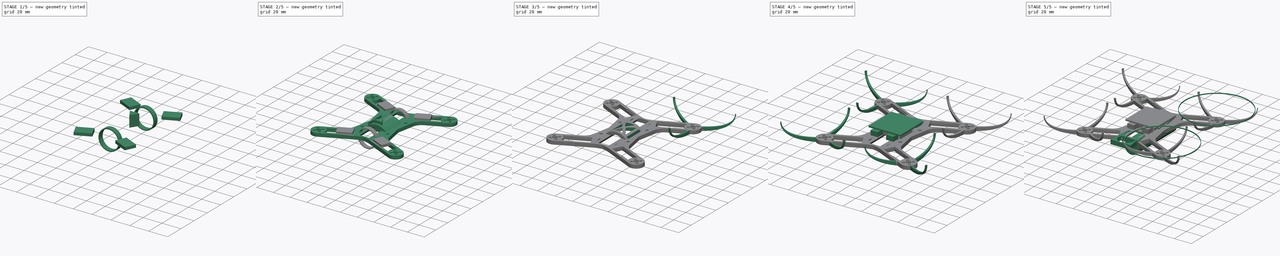
[diagram: build sequence overview — one tinted view per stage of 5, left to right]
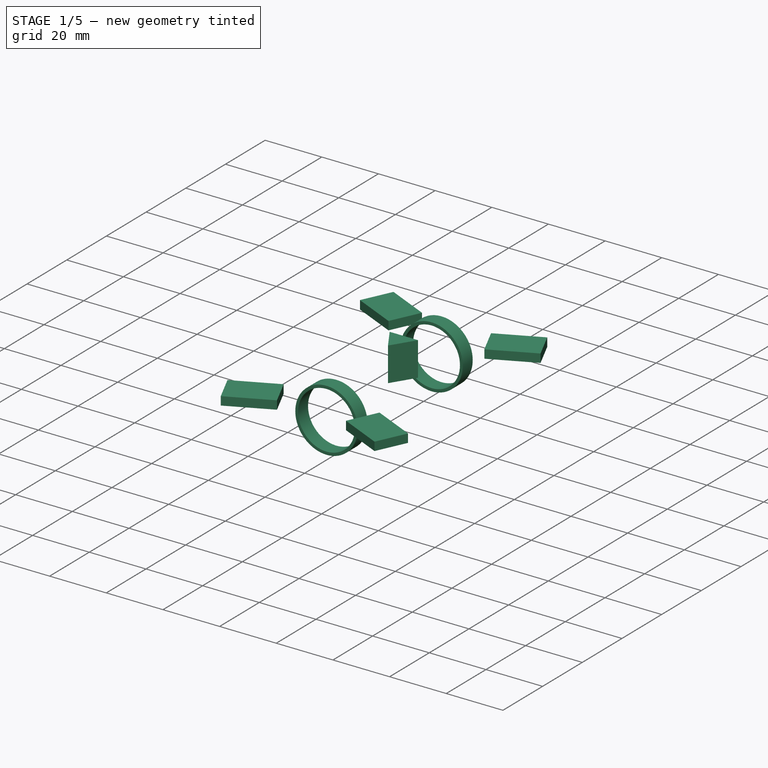
[diagram: stage 1 of 5 — iso view after this stage's code; geometry added in this stage tinted green]
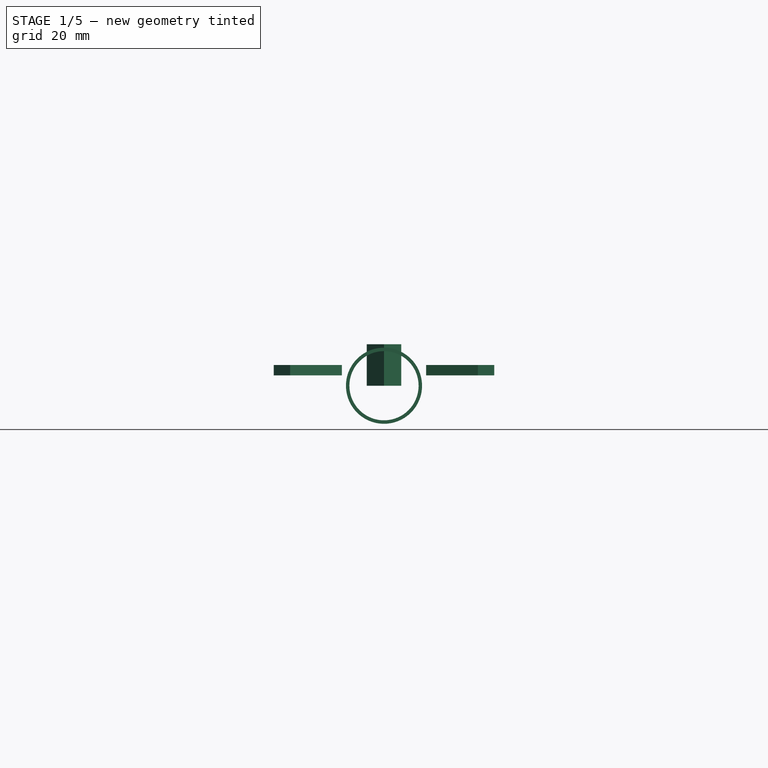
[diagram: stage 1 of 5 — front view after this stage's code; geometry added in this stage tinted green]
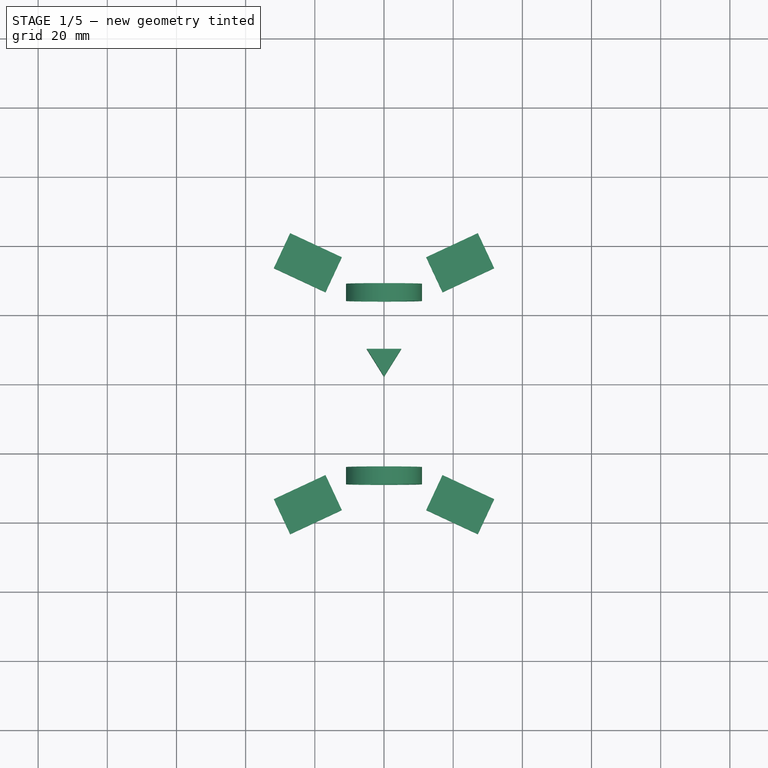
[diagram: stage 1 of 5 — top view after this stage's code; geometry added in this stage tinted green]
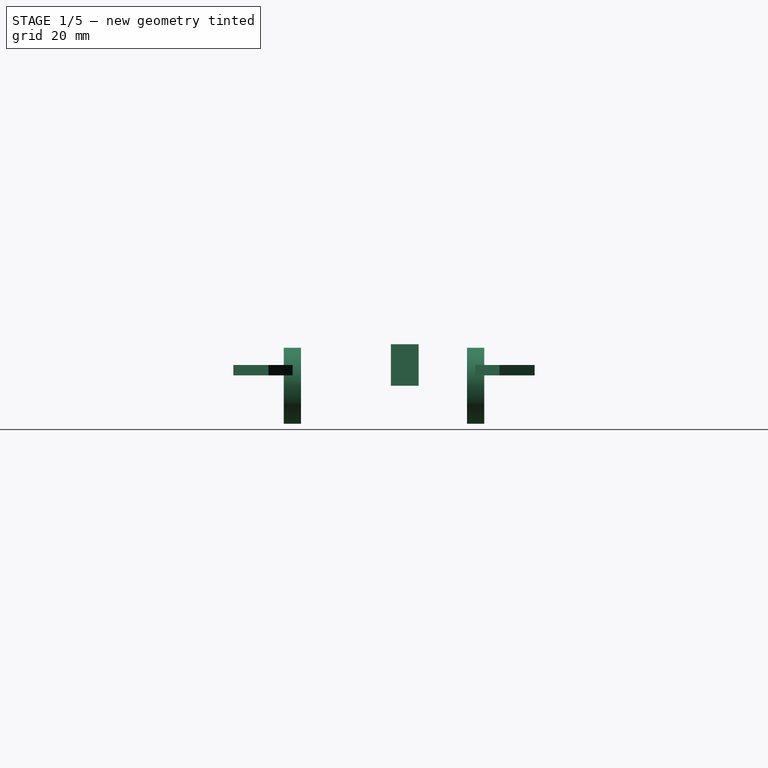
[diagram: stage 1 of 5 — right view after this stage's code; geometry added in this stage tinted green]
FCSTD DOCUMENT  (FreeCAD 0.18R16093 +53 (Git))
Label: bolt_frame_slim_center_v3
License: All rights reserved
LicenseURL: http://en.wikipedia.org/wiki/All_rights_reserved
objects: Part::MultiFuse×13, Part::Mirroring×12, Part::Extrusion×11, Part::Cylinder×11, Part::Cut×9, Sketcher::SketchObject×7, Part::Box×6, Part::FeaturePython×1
note: 70 computed .brp shape members not serialized (recipe doc carries the construction recipe); baked Part::Feature solids carry a one-line shape summary decoded from their .brp

FEATURE [Part::Box] Box006  label="ESC"
  AttacherType = Attacher::AttachEngine3D
  Height = 3
  Length = 11.2
  Placement = pos=(-16.9149,26.4139,3) rot=(0,0,1;1.13446rad)
  Width = 16.5
FEATURE [Sketcher::SketchObject] Sketch006
  sketch-geometry (3):
    g0: LineSegment StartX=-5 StartY=10 StartZ=0 EndX=0 EndY=2 EndZ=0
    g1: LineSegment StartX=5 StartY=10 StartZ=0 EndX=0 EndY=2 EndZ=0
    g2: LineSegment StartX=-5 StartY=10 StartZ=0 EndX=5 EndY=10 EndZ=0
  constraints (5):
    c: PointOnObject(g0,g-2)
    c: Coincident(g2,g0)
    c: Horizontal(g2)
    c: Coincident(g1,g2)
    c: Coincident(g0,g1)
FEATURE [Part::Extrusion] Extrude012
  Base = -> Sketch006
  Dir = (0,0,1)
  DirMode = 2
  FaceMakerClass = Part::FaceMakerBullseye
  LengthFwd = 12
  LengthRev = 0
  Solid = true
  Symmetric = false
FEATURE [Part::Cylinder] Cylinder007
  Angle = 360
  AttacherType = Attacher::AttachEngine3D
  Height = 5
  Placement = pos=(0,29,0) rot=(1,0,0;1.5708rad)
  Radius = 11
FEATURE [Part::Cylinder] Cylinder008
  Angle = 360
  AttacherType = Attacher::AttachEngine3D
  Height = 5
  Placement = pos=(0,29,0) rot=(1,0,0;1.5708rad)
  Radius = 10
FEATURE [Part::Cut] Cut008
  Base = -> Cylinder007
  Tool = -> Cylinder008
FEATURE [Part::Cylinder] Cylinder009
  Angle = 360
  AttacherType = Attacher::AttachEngine3D
  Height = 5
  Placement = pos=(0,29,0) rot=(1,0,0;1.5708rad)
  Radius = 10
FEATURE [Part::Cylinder] Cylinder010
  Angle = 360
  AttacherType = Attacher::AttachEngine3D
  Height = 5
  Placement = pos=(0,29,0) rot=(1,0,0;1.5708rad)
  Radius = 11
FEATURE [Part::Cut] Cut009
  Base = -> Cylinder010
  Placement = pos=(0,-53,0) rot=(0,0,1;0rad)
  Tool = -> Cylinder009
FEATURE [Part::MultiFuse] Fusion011  label="Ziptie_slit"
  Shapes = -> [Cut008,Cut009]
FEATURE [Part::Mirroring] Part__Mirroring010  label="ESC (Mirror #11)"
  Base = (0,0,0)
  Normal = (1,0,0)
  Source = -> Box006
FEATURE [Part::MultiFuse] Fusion012
  Shapes = -> [Box006,Part__Mirroring010]
FEATURE [Part::Mirroring] Part__Mirroring011  label="Fusion012 (Mirror #12)"
  Base = (0,0,0)
  Normal = (0,1,0)
  Source = -> Fusion012
FEATURE [Part::MultiFuse] Fusion013  label="ESC001"
  Shapes = -> [Fusion012,Part__Mirroring011]
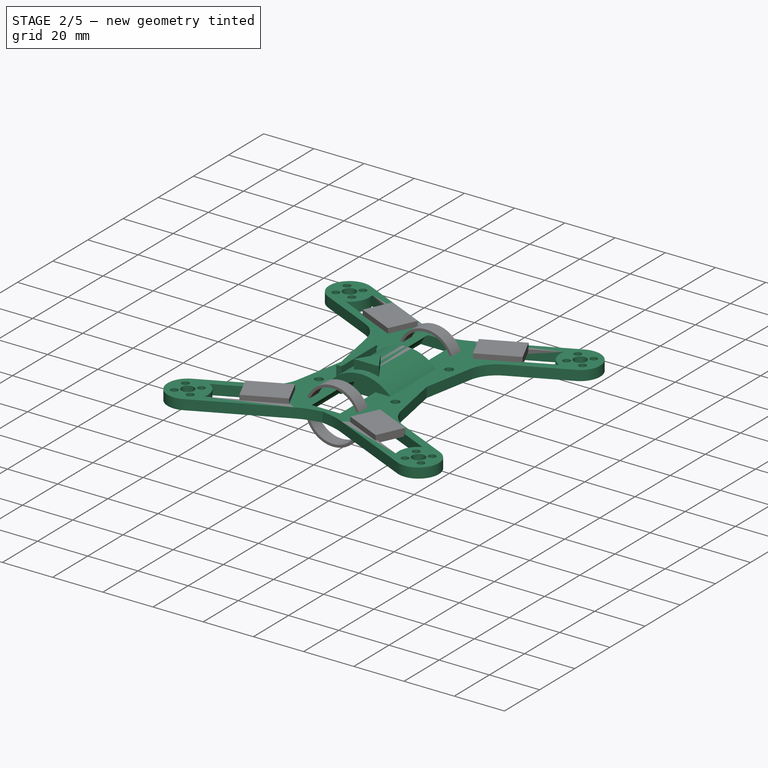
[diagram: stage 2 of 5 — iso view after this stage's code; geometry added in this stage tinted green]
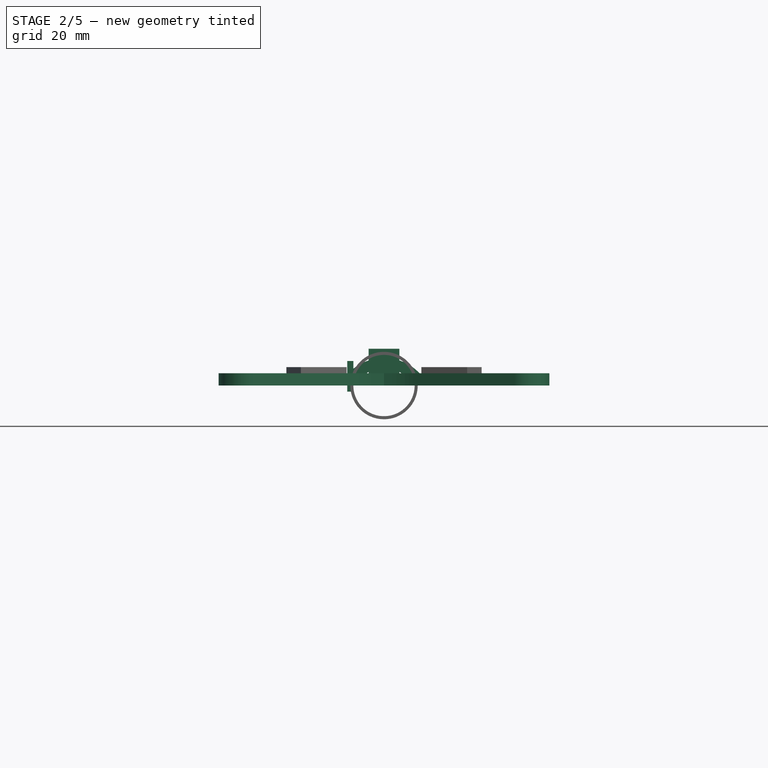
[diagram: stage 2 of 5 — front view after this stage's code; geometry added in this stage tinted green]
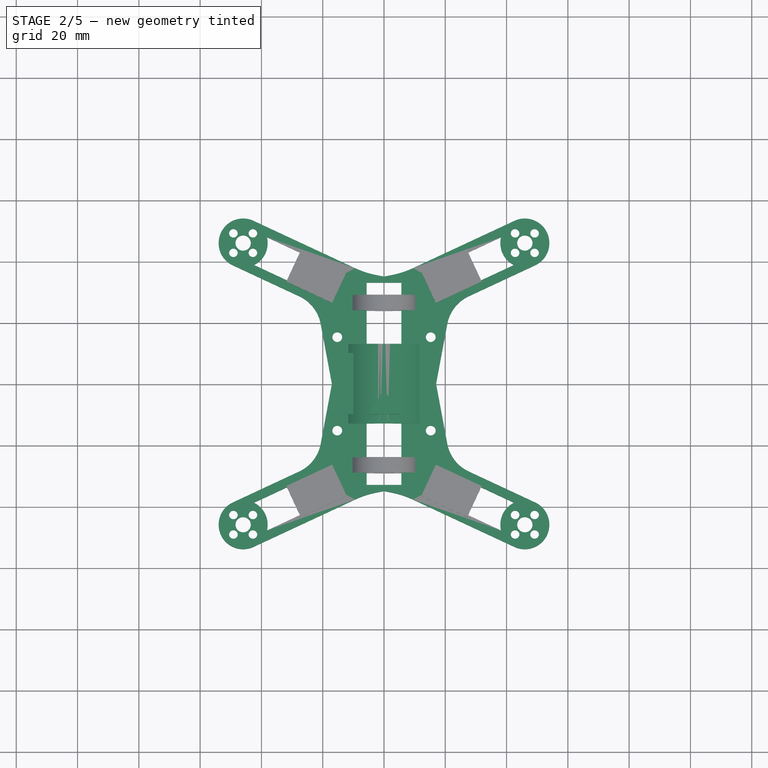
[diagram: stage 2 of 5 — top view after this stage's code; geometry added in this stage tinted green]
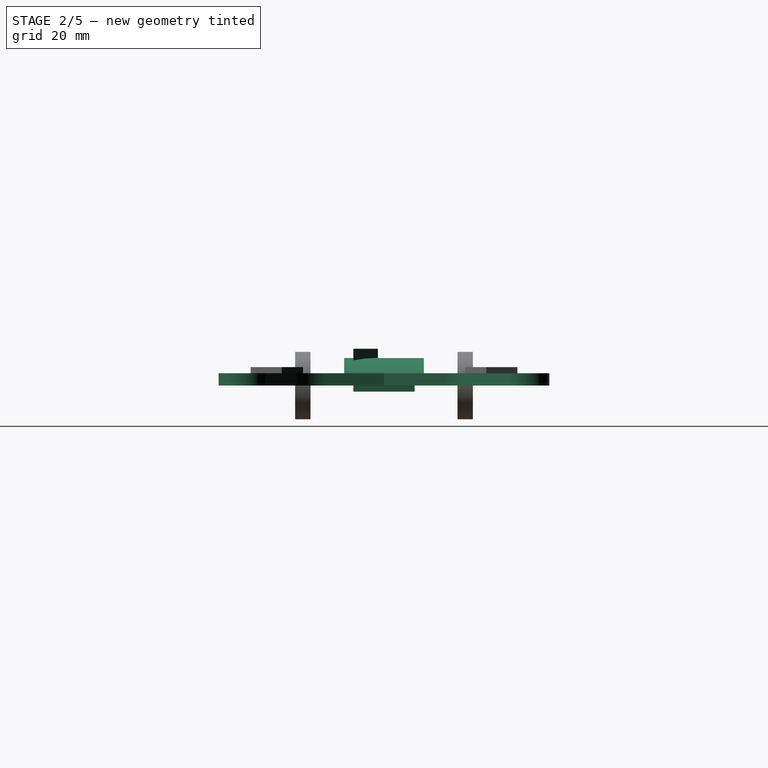
[diagram: stage 2 of 5 — right view after this stage's code; geometry added in this stage tinted green]
FEATURE [Sketcher::SketchObject] Sketch
  sketch-geometry (24):
    g0: Circle CenterX=-45.9619 CenterY=45.9619 CenterZ=0 NormalX=0 NormalY=0 NormalZ=1 AngleXU=0 Radius=2.5
    g1: LineSegment StartX=-27.6585 StartY=28.5999 StartZ=0 EndX=-49.3429 EndY=38.7115 EndZ=0
    g2: ArcOfCircle CenterX=-45.9619 CenterY=45.9619 CenterZ=0 NormalX=0 NormalY=0 NormalZ=1 AngleXU=0 Radius=8 StartAngle=1.13446 EndAngle=4.27606
    g3: Circle CenterX=-15.25 CenterY=15.25 CenterZ=0 NormalX=0 NormalY=0 NormalZ=1 AngleXU=0 Radius=1.6
    g4: LineSegment StartX=-9.44058 StartY=37.7588 StartZ=0 EndX=-42.5809 EndY=53.2124 EndZ=0
    g5: LineSegment StartX=-20.662 StartY=19.5791 StartZ=0 EndX=-17 EndY=0 EndZ=0
    g6: LineSegment StartX=0 StartY=0 StartZ=0 EndX=-17 EndY=0 EndZ=0
    g7: Circle CenterX=-49.1439 CenterY=42.78 CenterZ=0 NormalX=0 NormalY=0 NormalZ=1 AngleXU=0 Radius=1.4
    g8: Circle CenterX=-42.78 CenterY=49.1439 CenterZ=0 NormalX=0 NormalY=0 NormalZ=1 AngleXU=0 Radius=1.4
    g9: Circle CenterX=-42.78 CenterY=42.78 CenterZ=0 NormalX=0 NormalY=0 NormalZ=1 AngleXU=0 Radius=1.4
    g10: Circle CenterX=-49.1439 CenterY=49.1439 CenterZ=0 NormalX=0 NormalY=0 NormalZ=1 AngleXU=0 Radius=1.4
    g11: ArcOfCircle CenterX=-32.9354 CenterY=17.2835 CenterZ=0 NormalX=0 NormalY=0 NormalZ=1 AngleXU=0 Radius=12.4862 StartAngle=0.184899 EndAngle=1.13446
    g12: LineSegment [constr] StartX=0 StartY=0 StartZ=0 EndX=-45.9619 EndY=45.9619 EndZ=0
    g13: Circle [constr] CenterX=-45.9619 CenterY=45.9619 CenterZ=0 NormalX=0 NormalY=0 NormalZ=1 AngleXU=0 Radius=36
    g14: LineSegment StartX=0 StartY=35 StartZ=0 EndX=0 EndY=0 EndZ=0
    g15: LineSegment StartX=-2.66132 StartY=35.5338 StartZ=0 EndX=0 EndY=35 EndZ=0
    g16: ArcOfCircle CenterX=-38.3548 CenterY=62.2755 CenterZ=0 NormalX=0 NormalY=0 NormalZ=1 AngleXU=0 Radius=10 StartAngle=4.27605 EndAngle=4.27606
    g17: ArcOfCircle CenterX=-53.5691 CenterY=29.6484 CenterZ=0 NormalX=0 NormalY=0 NormalZ=1 AngleXU=0 Radius=10 StartAngle=1.13446 EndAngle=1.13446
    g18: ArcOfCircle CenterX=3.23797 CenterY=64.948 CenterZ=0 NormalX=0 NormalY=0 NormalZ=1 AngleXU=0 Radius=30 StartAngle=4.27606 EndAngle=4.51446
    g19: Circle [constr] CenterX=-45.9619 CenterY=45.9619 CenterZ=0 NormalX=0 NormalY=0 NormalZ=1 AngleXU=0 Radius=8
    g20: LineSegment StartX=-38.189 StartY=47.8542 StartZ=0 EndX=-12.7234 EndY=35.9795 EndZ=0
    g21: LineSegment StartX=-12.7234 StartY=35.9795 StartZ=0 EndX=-16.9496 EndY=26.9164 EndZ=0
    g22: LineSegment StartX=-16.9496 StartY=26.9164 StartZ=0 EndX=-42.4151 EndY=38.7912 EndZ=0
    g23: ArcOfCircle CenterX=-45.9588 CenterY=45.9605 CenterZ=0 NormalX=0 NormalY=0 NormalZ=1 AngleXU=0 Radius=7.99729 StartAngle=5.17145 EndAngle=6.52226
  constraints (60):
    c: Distance(g-1,g0) = 65
    c: Coincident(g0,g2)
    c: Radius(g3) = 1.6
    c: DistanceX(g3,g-1) = 15.25
    c: DistanceY(g-1,g3) = 15.25
    c: Coincident(g5,g6)
    c: Radius(g7) = 1.4
    c: Distance(g0,g7) = 4.5
    c: Radius(g8) = 1.4
    c: Radius(g9) = 1.4
    c: Distance(g9,g0) = 4.5
    c: Radius(g10) = 1.4
    c: Distance(g10,g0) = 4.5
    c: Distance(g8,g0) = 4.5
    c: PointOnObject(g14,g-2)
    c: PointOnObject(g5,g-1)
    c: PointOnObject(g6,g-1)
    c: DistanceX(g6,g-1) = 0
    c: DistanceY(g-1,g14) = 0
    c: Distance(g8,g9) = 6.36396
    c: Distance(g8,g10) = 6.36396
    c: Distance(g10,g7) = 6.36396
    c: Tangent(g1,g11) = -1.5708
    c: Tangent(g5,g11) = 1.5708
    c: Radius(g2) = 8
    c: Coincident(g12,g-1)
    c: Angle(g12) = 2.35619
    c: Coincident(g0,g12)
    c: PointOnObject(g9,g12)
    c: Radius(g13) = 36
    c: Coincident(g13,g0)
    c: PointOnObject(g14,g-2)
    c: DistanceY(g14) = 35
    c: Coincident(g14,g15)
    c: Tangent(g2,g16) = 1.5708
    c: Tangent(g4,g16) = 1.5708
    c: Tangent(g2,g17) = 1.5708
    c: Tangent(g1,g17) = -1.5708
    c: Tangent(g15,g18) = -1.5708
    c: Tangent(g4,g18) = 1.5708
    c: Radius(g18) = 30
    c: Radius(g19) = 8
    c: Coincident(g19,g0)
    c: Angle(g4) = 2.70526
    c: Angle(g1) = 2.70526
    c: DistanceX(g5) = -17
    c: Coincident(g20,g21)
    c: Coincident(g21,g22)
    c: Parallel(g4,g20)
    c: PointOnObject(g20,g19)
    c: PointOnObject(g22,g19)
    c: Perpendicular(g21,g20)
    c: Distance(g4,g20) = 3
    c: Parallel(g1,g22)
    c: Distance(g1,g22) = 3
    c: Coincident(g23,g20)
    c: Coincident(g22,g23)
    c: Radius(g17) = 10
    c: Distance(g21) = 10
    c: Radius(g16) = 10
FEATURE [Part::Extrusion] Extrude
  Base = -> Sketch
  Dir = (0,0,1)
  DirMode = 2
  FaceMakerClass = Part::FaceMakerBullseye
  LengthFwd = 4
  LengthRev = 0
  Solid = true
  Symmetric = false
FEATURE [Part::Mirroring] Part__Mirroring  label="Extrude (Mirror #1)"
  Base = (0,0,0)
  Normal = (0,1,0)
  Source = -> Extrude
FEATURE [Part::Mirroring] Part__Mirroring001  label="Extrude (Mirror #2)"
  Base = (0,0,0)
  Normal = (1,0,0)
  Source = -> Part__Mirroring
FEATURE [Part::Mirroring] Part__Mirroring002  label="Extrude (Mirror #3)"
  Base = (0,0,0)
  Normal = (1,0,0)
  Source = -> Extrude
FEATURE [Part::Cylinder] Cylinder
  Angle = 360
  AttacherType = Attacher::AttachEngine3D
  Height = 66
  Placement = pos=(0,33,-3) rot=(1,0,0;1.5708rad)
  Radius = 9
FEATURE [Part::MultiFuse] Fusion
  Shapes = -> [Part__Mirroring002,Extrude,Part__Mirroring001,Part__Mirroring]
FEATURE [Part::Cut] Cut005
  Base = -> Fusion
  Tool = -> Cylinder
FEATURE [Part::Extrusion] Extrude007
  Base = -> Sketch002
  Dir = (0,-1,2e-16)
  DirMode = 2
  FaceMakerClass = Part::FaceMakerBullseye
  LengthFwd = 26
  LengthRev = 0
  Placement = pos=(0,20,0) rot=(0,0,1;0rad)
  Reversed = true
  Solid = true
  Symmetric = false
FEATURE [Part::Box] Box008  label="Cube007"
  AttacherType = Attacher::AttachEngine3D
  Height = 10
  Length = 2
  Placement = pos=(10,-10,-2) rot=(0,0,1;0rad)
  Width = 20
FEATURE [Part::Mirroring] Part__Mirroring005  label="Cube007 (Mirror #6)"
  Base = (0,0,0)
  Normal = (1,0,0)
  Source = -> Box008
FEATURE [Part::MultiFuse] Fusion007
  Shapes = -> [Cut005,Extrude007]
FEATURE [Part::Mirroring] Part__Mirroring009  label="Extrude012 (Mirror #10)"
  Base = (0,0,0)
  Normal = (0,1,0)
  Source = -> Extrude012
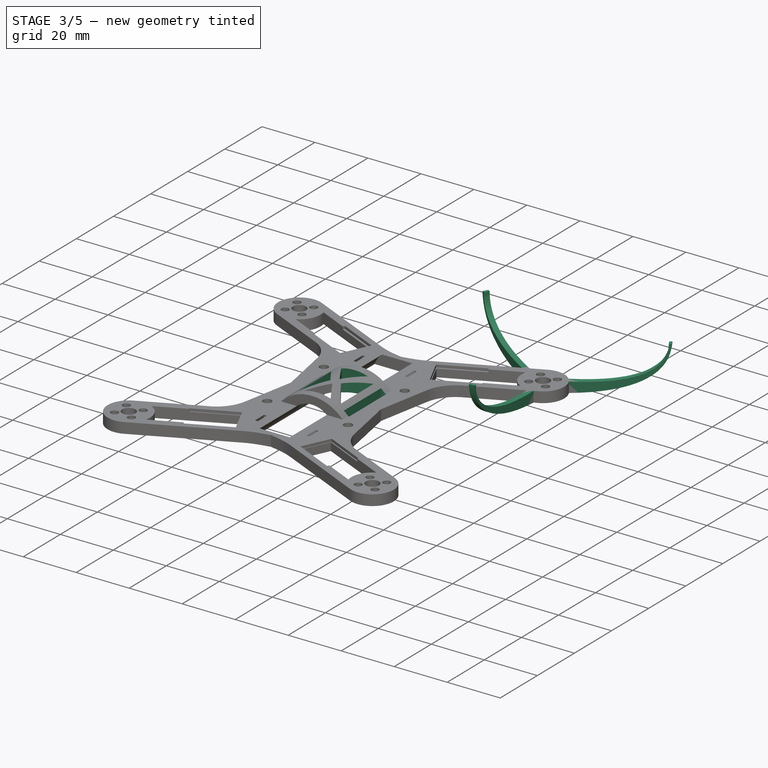
[diagram: stage 3 of 5 — iso view after this stage's code; geometry added in this stage tinted green]
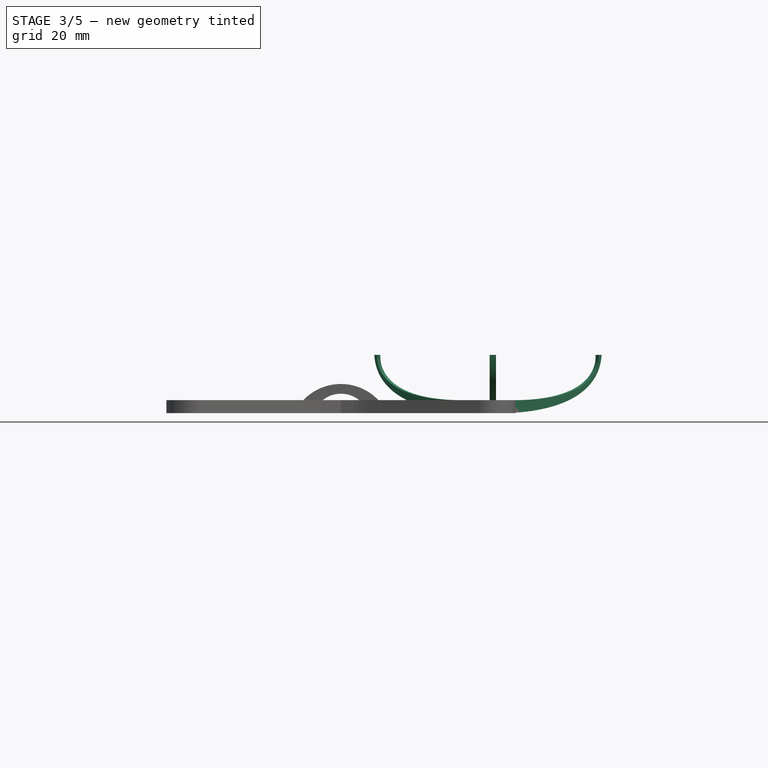
[diagram: stage 3 of 5 — front view after this stage's code; geometry added in this stage tinted green]
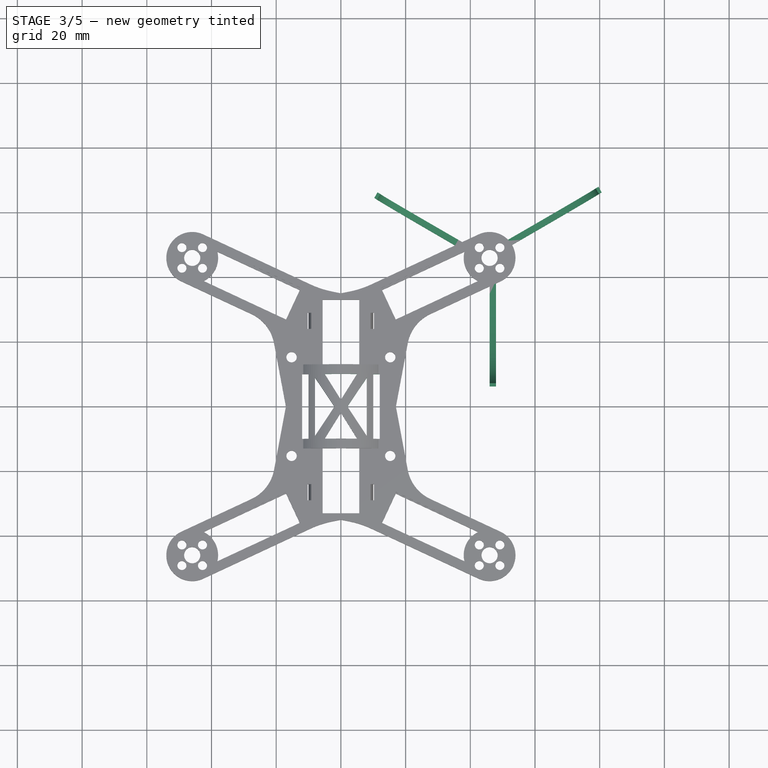
[diagram: stage 3 of 5 — top view after this stage's code; geometry added in this stage tinted green]
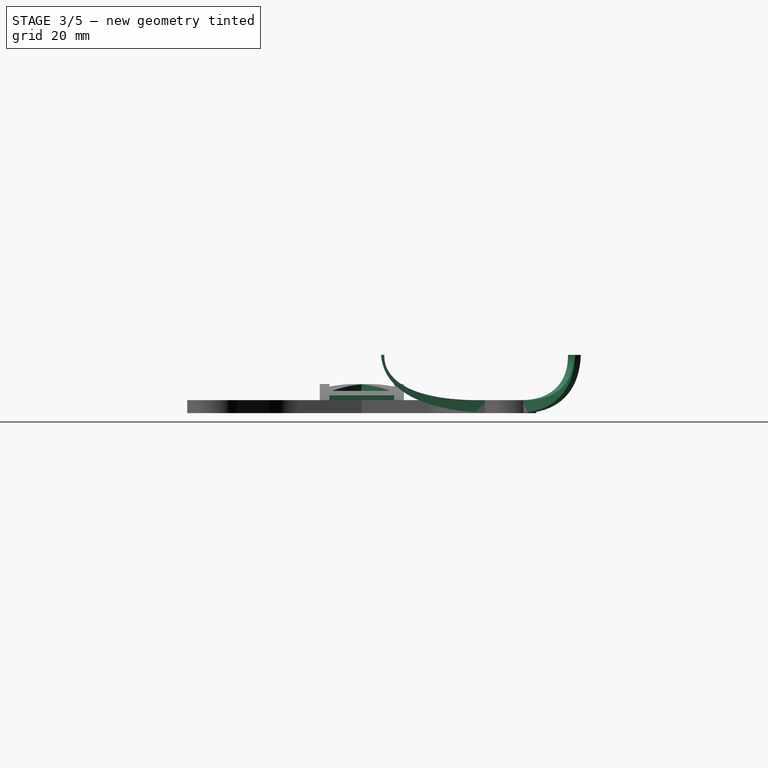
[diagram: stage 3 of 5 — right view after this stage's code; geometry added in this stage tinted green]
FEATURE [Part::Cylinder] Cylinder006
  Angle = 360
  AttacherType = Attacher::AttachEngine3D
  Height = 74
  Placement = pos=(0,33,-3) rot=(1,0,0;1.5708rad)
  Radius = 9
FEATURE [Sketcher::SketchObject] Sketch003
  MapMode = 5
  Placement = pos=(0,-41,-3) rot=(1,0,0;1.5708rad)
  Support = -> [Cylinder006]
  sketch-geometry (5):
    g0: ArcOfCircle CenterX=0 CenterY=0 CenterZ=0 NormalX=0 NormalY=0 NormalZ=1 AngleXU=0 Radius=9 StartAngle=0.729728 EndAngle=2.41186
    g1: LineSegment [constr] StartX=-12.9645 StartY=6 StartZ=0 EndX=13.2154 EndY=6 EndZ=0
    g2: ArcOfCircle CenterX=0 CenterY=-4 CenterZ=0 NormalX=0 NormalY=0 NormalZ=1 AngleXU=0 Radius=14 StartAngle=0.795603 EndAngle=2.34599
    g3: LineSegment StartX=-9.79796 StartY=6 StartZ=0 EndX=-6.7082 EndY=6 EndZ=0
    g4: LineSegment StartX=6.7082 StartY=6 StartZ=0 EndX=9.79796 EndY=6 EndZ=0
  constraints (15):
    c: Coincident(g0,g-1)
    c: Radius(g0) = 9
    c: Horizontal(g1)
    c: PointOnObject(g0,g1)
    c: PointOnObject(g0,g1)
    c: PointOnObject(g2,g-2)
    c: PointOnObject(g2,g1)
    c: PointOnObject(g2,g1)
    c: DistanceY(g2) = -4
    c: Coincident(g3,g2)
    c: Coincident(g3,g0)
    c: Coincident(g4,g0)
    c: Coincident(g4,g2)
    c: DistanceY(g1) = 6
    c: Radius(g2) = 14
FEATURE [Part::Extrusion] Extrude008
  Base = -> Sketch003
  Dir = (0,-1,2e-16)
  DirMode = 2
  FaceMakerClass = Part::FaceMakerBullseye
  LengthFwd = 11
  LengthRev = 0
  Placement = pos=(0,63,0) rot=(0,0,1;0rad)
  Reversed = true
  Solid = true
  Symmetric = false
FEATURE [Part::Extrusion] Extrude009
  Base = -> Sketch003
  Dir = (0,-1,2e-16)
  DirMode = 2
  FaceMakerClass = Part::FaceMakerBullseye
  LengthFwd = 11
  LengthRev = 2
  Placement = pos=(0,8,0) rot=(0,0,1;0rad)
  Reversed = true
  Solid = true
  Symmetric = false
FEATURE [Part::MultiFuse] Fusion006
  Shapes = -> [Part__Mirroring005,Box008]
FEATURE [Part::Cut] Cut006  label="Frame"
  Base = -> Fusion007
  Tool = -> Fusion006
FEATURE [Sketcher::SketchObject] Sketch004
  Placement = pos=(45.96,45.96,0) rot=(0.57735,0.57735,0.57735;2.0944rad)
  sketch-geometry (10):
    g0: Circle [constr] CenterX=-6.99995 CenterY=4.8e-05 CenterZ=0 NormalX=0 NormalY=0 NormalZ=1 AngleXU=0 Radius=5.18111
    g1: Circle [constr] CenterX=-38.7435 CenterY=1.33987 CenterZ=0 NormalX=0 NormalY=0 NormalZ=1 AngleXU=0 Radius=4.83607
    g2: BSplineCurve PolesCount=3 KnotsCount=2 Degree=2 IsPeriodic=0
    g3: GeomPoint [constr] X=-8 Y=0 Z=0
    g4: Circle [constr] CenterX=-8 CenterY=4 CenterZ=0 NormalX=0 NormalY=0 NormalZ=1 AngleXU=0 Radius=4
    g5: Circle [constr] CenterX=-39.3923 CenterY=3.22739 CenterZ=0 NormalX=0 NormalY=0 NormalZ=1 AngleXU=0 Radius=4
    g6: BSplineCurve PolesCount=4 KnotsCount=2 Degree=3 IsPeriodic=0
    g7: GeomPoint [constr] X=-8 Y=4 Z=0
    g8: LineSegment StartX=-40.0067 StartY=18.0009 StartZ=0 EndX=-38.9974 EndY=18.0009 EndZ=0
    g9: LineSegment StartX=-6.99995 StartY=3.99997 StartZ=0 EndX=-6.99995 EndY=4.8e-05 EndZ=0
  constraints (6):
    c: InternalAlignment(g0,g2)
    c: InternalAlignment(g1,g2)
    c: Coincident(g9,g6)
    c: Coincident(g9,g2)
    c: Vertical(g9)
    c: Horizontal(g8)
FEATURE [Part::Extrusion] Extrude010
  Base = -> Sketch004
  Dir = (1,-1e-16,2e-16)
  DirMode = 2
  FaceMakerClass = Part::FaceMakerBullseye
  LengthFwd = 2
  LengthRev = 0
  Solid = true
  Symmetric = false
FEATURE [Part::FeaturePython] Array  # Draft array (typed FeaturePython)
  Angle = 360
  ArrayType = 1
  Axis = (0,0,1)
  Base = -> Extrude010
  Center = (45.96,45.96,0)
  Fuse = false
  IntervalAxis = (0,0,0)
  IntervalX = (1,0,0)
  IntervalY = (0,1,0)
  IntervalZ = (0,0,1)
  NumberPolar = 3
  NumberX = 2
  NumberY = 2
  NumberZ = 1
FEATURE [Sketcher::SketchObject] Sketch005
  MapMode = 45
  Placement = pos=(3.2e-15,-0.127025,2.68397) rot=(-1,0,0;0.00032rad)
  Support = -> [Extrude008,Extrude009,Cut006]
  sketch-geometry (3):
    g0: LineSegment StartX=-2 StartY=0 StartZ=0 EndX=-8 EndY=9 EndZ=0
    g1: LineSegment StartX=-8 StartY=9 StartZ=0 EndX=-8 EndY=-9 EndZ=0
    g2: LineSegment StartX=-8 StartY=-9 StartZ=0 EndX=-2 EndY=0 EndZ=0
  constraints (3):
    c: Vertical(g1)
    c: Coincident(g0,g1)
    c: Coincident(g1,g2)
FEATURE [Part::Extrusion] Extrude011
  Base = -> Sketch005
  Dir = (0,0.000320156,1)
  DirMode = 2
  FaceMakerClass = Part::FaceMakerBullseye
  LengthFwd = 10
  LengthRev = 2
  Solid = true
  Symmetric = false
FEATURE [Part::Mirroring] Part__Mirroring008  label="Extrude011 (Mirror #9)"
  Base = (0,0,0)
  Normal = (1,0,0)
  Source = -> Extrude011
FEATURE [Part::MultiFuse] Fusion010  label="V_cuts"
  Shapes = -> [Part__Mirroring009,Extrude011,Part__Mirroring008,Extrude012]
FEATURE [Part::Cut] Cut007
  Base = -> Cut006
  Tool = -> Fusion010
FEATURE [Part::Cut] Cut010
  Base = -> Cut007
  Tool = -> Fusion011
FEATURE [Part::Cut] Cut011
  Base = -> Cut010
  Tool = -> Fusion013
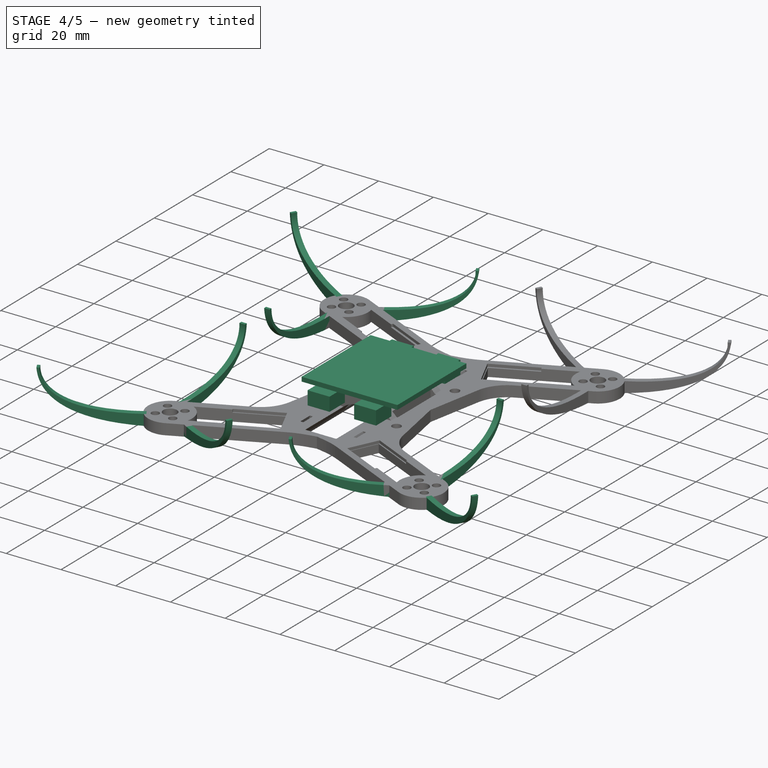
[diagram: stage 4 of 5 — iso view after this stage's code; geometry added in this stage tinted green]
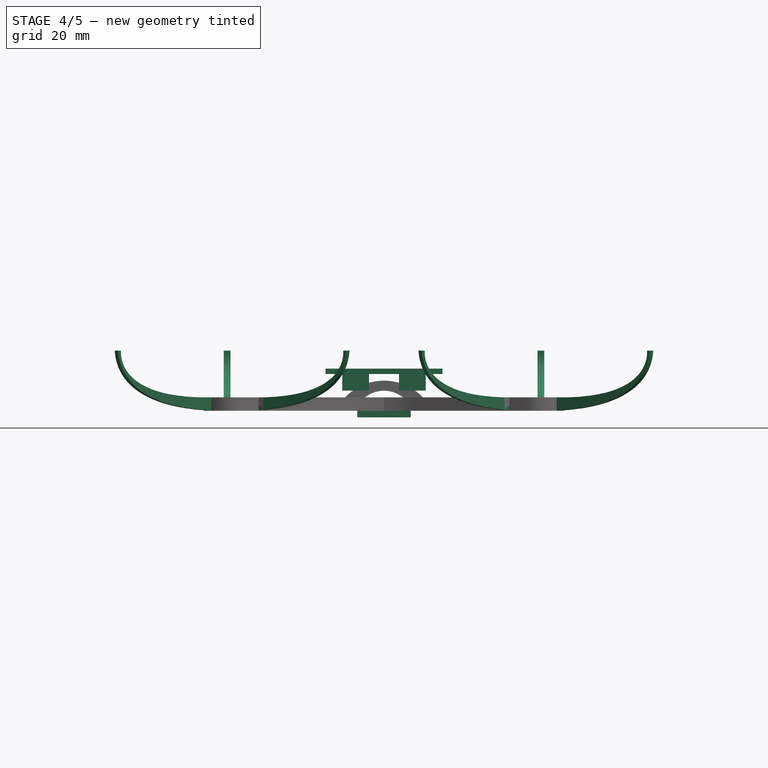
[diagram: stage 4 of 5 — front view after this stage's code; geometry added in this stage tinted green]
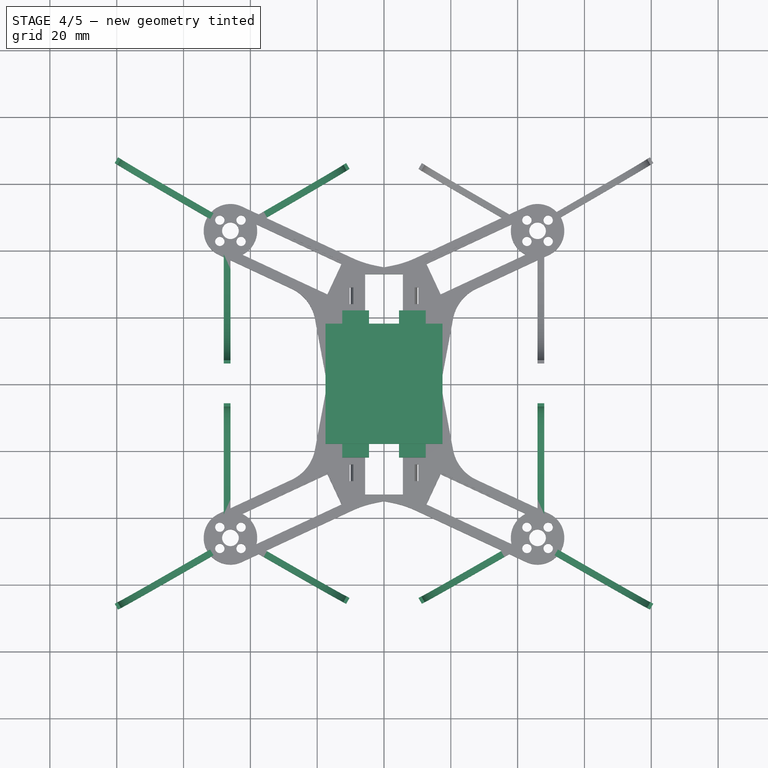
[diagram: stage 4 of 5 — top view after this stage's code; geometry added in this stage tinted green]
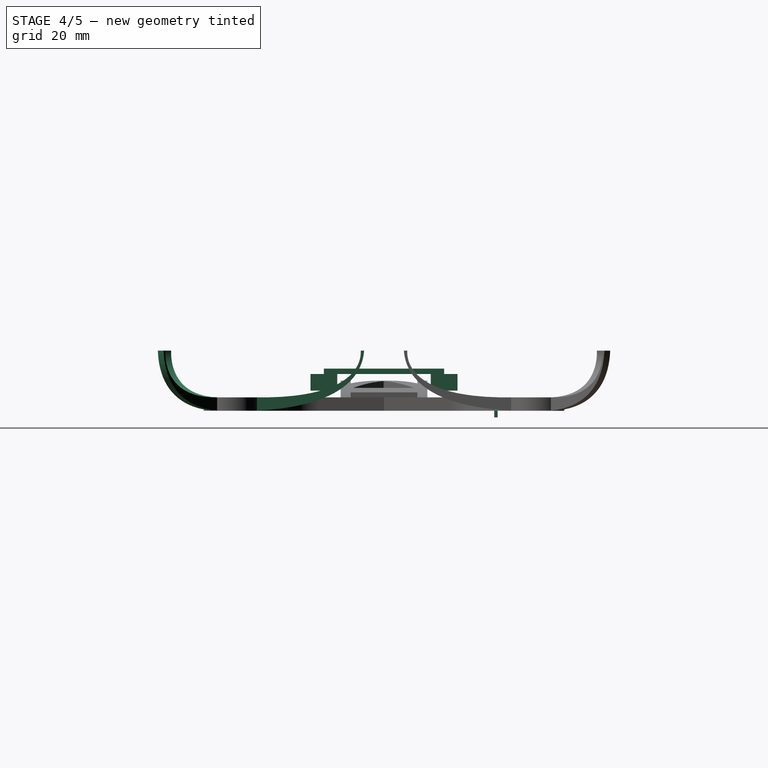
[diagram: stage 4 of 5 — right view after this stage's code; geometry added in this stage tinted green]
FEATURE [Part::Box] Box005  label="Cube005"
  AttacherType = Attacher::AttachEngine3D
  Height = 2
  Length = 16
  Placement = pos=(-8,33,-2) rot=(0,0,1;0rad)
  Width = 1
FEATURE [Sketcher::SketchObject] Sketch002
  MapMode = 5
  Placement = pos=(0,-33,-3) rot=(1,0,0;1.5708rad)
  Support = -> [Cylinder]
  sketch-geometry (5):
    g0: ArcOfCircle CenterX=0 CenterY=0 CenterZ=0 NormalX=0 NormalY=0 NormalZ=1 AngleXU=0 Radius=9 StartAngle=0.729728 EndAngle=2.41186
    g1: LineSegment [constr] StartX=-12.9645 StartY=6 StartZ=0 EndX=13.2154 EndY=6 EndZ=0
    g2: ArcOfCircle CenterX=0 CenterY=-4 CenterZ=0 NormalX=0 NormalY=0 NormalZ=1 AngleXU=0 Radius=16 StartAngle=0.675132 EndAngle=2.46646
    g3: LineSegment StartX=-12.49 StartY=6 StartZ=0 EndX=-6.7082 EndY=6 EndZ=0
    g4: LineSegment StartX=6.7082 StartY=6 StartZ=0 EndX=12.49 EndY=6 EndZ=0
  constraints (15):
    c: Coincident(g0,g-1)
    c: Radius(g0) = 9
    c: Horizontal(g1)
    c: PointOnObject(g0,g1)
    c: PointOnObject(g0,g1)
    c: PointOnObject(g2,g-2)
    c: PointOnObject(g2,g1)
    c: PointOnObject(g2,g1)
    c: DistanceY(g2) = -4
    c: Coincident(g3,g2)
    c: Coincident(g3,g0)
    c: Coincident(g4,g0)
    c: Coincident(g4,g2)
    c: DistanceY(g1) = 6
    c: Radius(g2) = 16
FEATURE [Part::Box] Box  label="Cube"
  AttacherType = Attacher::AttachEngine3D
  Height = 1.6
  Length = 35
  Placement = pos=(-17.5,-18,11) rot=(0,0,1;0rad)
  Width = 36
FEATURE [Part::Box] Box007  label="Cube006"
  AttacherType = Attacher::AttachEngine3D
  Height = 5
  Length = 8
  Placement = pos=(4.5,14,6) rot=(0,0,1;0rad)
  Width = 8
FEATURE [Part::Mirroring] Part__Mirroring003  label="Cube006 (Mirror #4)"
  Base = (0,0,0)
  Normal = (0,1,0)
  Source = -> Box007
FEATURE [Part::MultiFuse] Fusion003
  Shapes = -> [Part__Mirroring003,Box007]
FEATURE [Part::Mirroring] Part__Mirroring004  label="Fusion003 (Mirror #5)"
  Base = (0,0,0)
  Normal = (1,0,0)
  Source = -> Fusion003
FEATURE [Part::MultiFuse] Fusion004
  Shapes = -> [Part__Mirroring004,Fusion003]
FEATURE [Part::MultiFuse] Fusion005  label="Bolt_PCB"
  Shapes = -> [Box,Fusion004]
FEATURE [Part::Mirroring] Part__Mirroring006  label="Array (Mirror #7)"
  Base = (0,0,0)
  Normal = (0,1,0)
  Source = -> Array
FEATURE [Part::MultiFuse] Fusion008
  Shapes = -> [Part__Mirroring006,Array]
FEATURE [Part::Mirroring] Part__Mirroring007  label="Landing_prop_guard"
  Base = (0,0,0)
  Normal = (1,0,0)
  Source = -> Fusion008
FEATURE [Part::MultiFuse] Fusion009  label="Propguard"
  Shapes = -> [Part__Mirroring007,Fusion008]
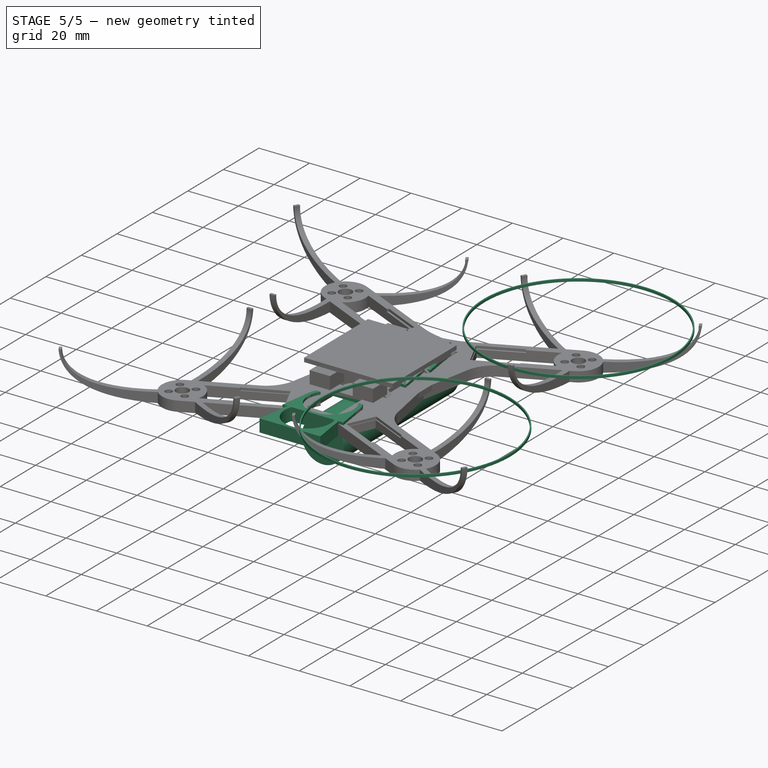
[diagram: stage 5 of 5 — iso view after this stage's code; geometry added in this stage tinted green]
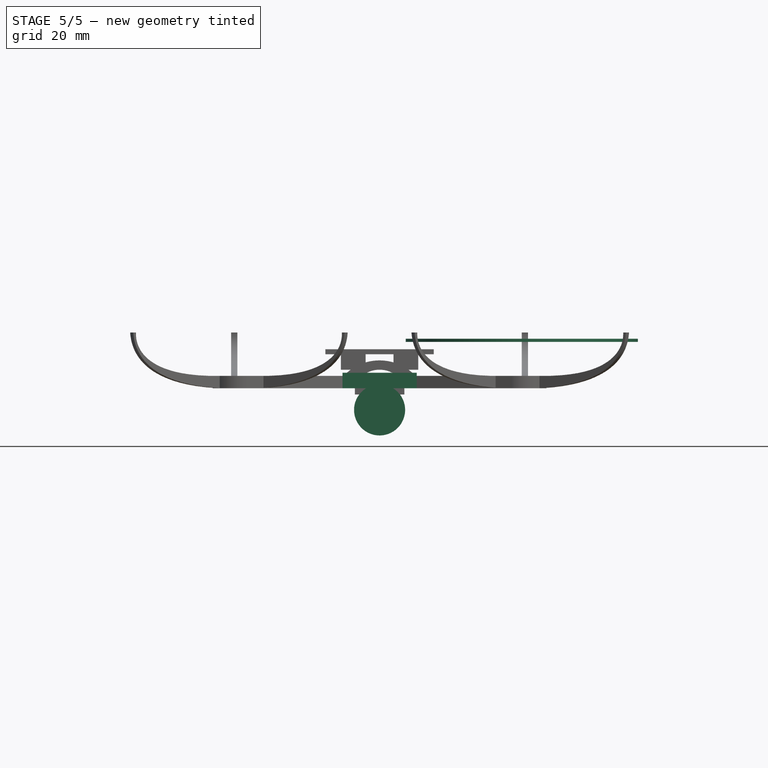
[diagram: stage 5 of 5 — front view after this stage's code; geometry added in this stage tinted green]
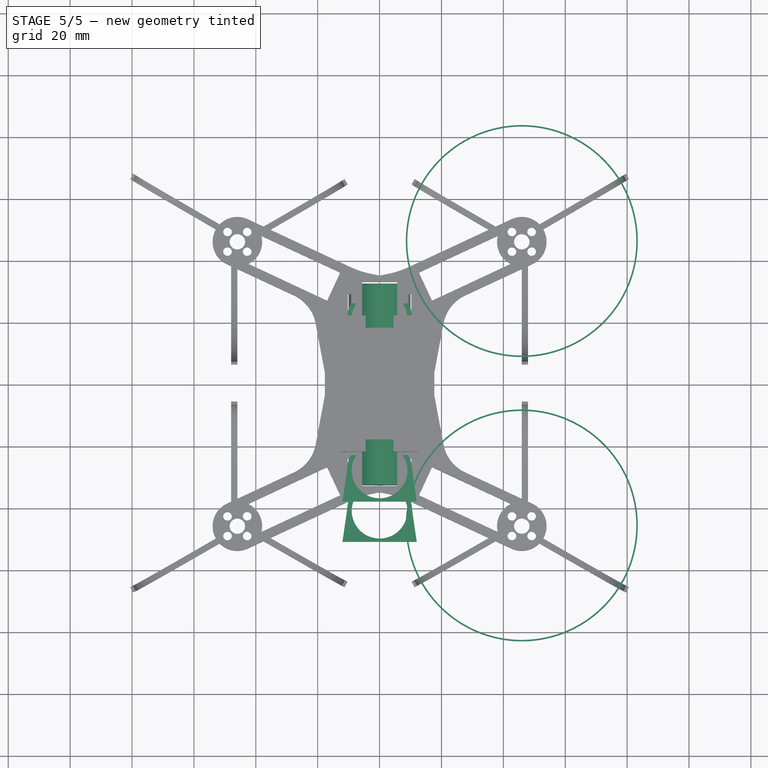
[diagram: stage 5 of 5 — top view after this stage's code; geometry added in this stage tinted green]
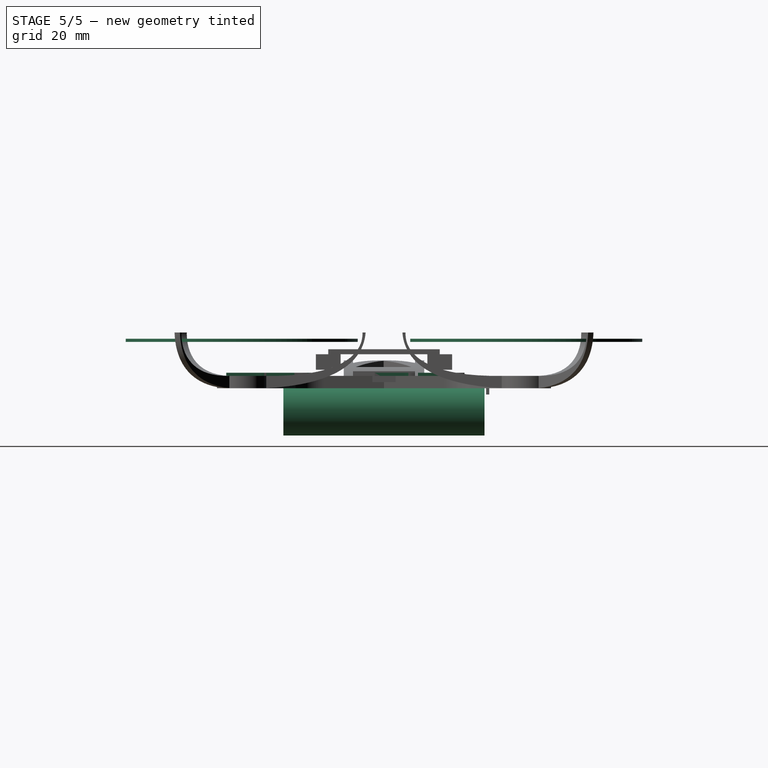
[diagram: stage 5 of 5 — right view after this stage's code; geometry added in this stage tinted green]
FEATURE [Part::Cylinder] Cylinder001
  Angle = 360
  AttacherType = Attacher::AttachEngine3D
  Height = 1
  Placement = pos=(45.96,45.96,15) rot=(0,0,1;0rad)
  Radius = 37
FEATURE [Part::Cylinder] Cylinder002
  Angle = 360
  AttacherType = Attacher::AttachEngine3D
  Height = 1
  Placement = pos=(45.96,45.96,15) rot=(0,0,1;0rad)
  Radius = 37.5
FEATURE [Part::Cut] Cut  label="Prop_m1"
  Base = -> Cylinder002
  Tool = -> Cylinder001
FEATURE [Part::Cylinder] Cylinder003
  Angle = 360
  AttacherType = Attacher::AttachEngine3D
  Height = 1
  Placement = pos=(45.96,-45.96,15) rot=(0,0,1;0rad)
  Radius = 37
FEATURE [Part::Cylinder] Cylinder004
  Angle = 360
  AttacherType = Attacher::AttachEngine3D
  Height = 1
  Placement = pos=(45.96,-45.96,15) rot=(0,0,1;0rad)
  Radius = 37.5
FEATURE [Part::Cut] Cut001  label="Prop_m2"
  Base = -> Cylinder004
  Tool = -> Cylinder003
FEATURE [Part::Cylinder] Cylinder005  label="Battery"
  Angle = 360
  AttacherType = Attacher::AttachEngine3D
  Height = 65
  Placement = pos=(0,32.5,-7) rot=(1,0,0;1.5708rad)
  Radius = 8.25
FEATURE [Part::Box] Box003  label="Cube003"
  AttacherType = Attacher::AttachEngine3D
  Height = 2
  Length = 35.4
  Placement = pos=(-17.7,-18,2) rot=(0,0,1;0rad)
  Width = 36
FEATURE [Sketcher::SketchObject] Sketch001  label="Holder"
  MapMode = 5
  Placement = pos=(0,0,0) rot=(1,0,0;3.14159rad)
  Support = -> [Cut005]
  sketch-geometry (14):
    g0: Circle [constr] CenterX=0 CenterY=-7 CenterZ=0 NormalX=0 NormalY=0 NormalZ=1 AngleXU=0 Radius=9
    g1: ArcOfCircle CenterX=2e-16 CenterY=-7 CenterZ=0 NormalX=0 NormalY=0 NormalZ=1 AngleXU=0 Radius=9 StartAngle=5.69415 EndAngle=10.0138
    g2: LineSegment [constr] StartX=-11.1689 StartY=-12 StartZ=0 EndX=12.9004 EndY=-12 EndZ=0
    g3: ArcOfCircle CenterX=0 CenterY=-7 CenterZ=0 NormalX=0 NormalY=0 NormalZ=1 AngleXU=0 Radius=10.5 StartAngle=5.78687 EndAngle=6.19923
    g4: LineSegment StartX=10.6743 StartY=-6.04673 StartZ=0 EndX=12 EndY=3 EndZ=0
    g5: ArcOfCircle CenterX=0 CenterY=-7 CenterZ=0 NormalX=0 NormalY=0 NormalZ=1 AngleXU=0 Radius=10.5 StartAngle=3.22511 EndAngle=3.63791
    g6: LineSegment [constr] StartX=-11.4271 StartY=-7 StartZ=0 EndX=12.9102 EndY=-7 EndZ=0
    g7: LineSegment StartX=-10.6764 StartY=-6.02514 StartZ=0 EndX=-12 EndY=3 EndZ=0
    g8: LineSegment [constr] StartX=-12.0848 StartY=3 StartZ=0 EndX=12.9134 EndY=3 EndZ=0
    g9: LineSegment StartX=7.48331 StartY=-12 StartZ=0 EndX=9.23309 EndY=-12 EndZ=0
    g10: LineSegment StartX=-9.23309 StartY=-12 StartZ=0 EndX=-7.48331 EndY=-12 EndZ=0
    g11: ArcOfCircle CenterX=40.3573 CenterY=-10.3963 CenterZ=0 NormalX=0 NormalY=0 NormalZ=1 AngleXU=0 Radius=30 StartAngle=2.99609 EndAngle=3.05763
    g12: ArcOfCircle CenterX=-40.3588 CenterY=-10.3784 CenterZ=0 NormalX=0 NormalY=0 NormalZ=1 AngleXU=0 Radius=30 StartAngle=0.0835136 EndAngle=0.145622
    g13: LineSegment StartX=-12 StartY=3 StartZ=0 EndX=12 EndY=3 EndZ=0
  constraints (35):
    c: PointOnObject(g0,g-2)
    c: Radius(g0) = 9
    c: DistanceY(g0) = -7
    c: PointOnObject(g1,g0)
    c: PointOnObject(g1,g0)
    c: Horizontal(g2)
    c: DistanceY(g2,g-1) = 12
    c: PointOnObject(g1,g2)
    c: PointOnObject(g1,g2)
    c: Coincident(g3,g0)
    c: PointOnObject(g3,g2)
    c: Radius(g3) = 10.5
    c: Coincident(g5,g3)
    c: PointOnObject(g5,g2)
    c: Horizontal(g6)
    c: PointOnObject(g1,g6)
    c: PointOnObject(g3,g6)
    c: Radius(g5) = 10.5
    c: DistanceY(g8) = 3
    c: Horizontal(g8)
    c: PointOnObject(g4,g8)
    c: Symmetric(g7,g4,g-2)
    c: DistanceX(g4) = 12
    c: Coincident(g9,g1)
    c: Coincident(g9,g3)
    c: Coincident(g10,g1)
    c: Tangent(g4,g11) = 1.5708
    c: Tangent(g3,g11) = 1.5708
    c: Tangent(g7,g12) = -1.5708
    c: Tangent(g5,g12) = 1.5708
    c: Radius(g12) = 30
    c: Radius(g11) = 30
    c: Coincident(g13,g7)
    c: Coincident(g13,g4)
    c: Coincident(g5,g10)
FEATURE [Part::Extrusion] Extrude001  label="Holder_front"
  Base = -> Sketch001
  Dir = (0,0,-1)
  DirMode = 2
  FaceMakerClass = Part::FaceMakerBullseye
  LengthFwd = 5
  LengthRev = 0
  Placement = pos=(0,14,0) rot=(0,0,1;0rad)
  Reversed = true
  Solid = true
  Symmetric = false
FEATURE [Part::Extrusion] Extrude002  label="Holder_front001"
  Base = -> Sketch001
  Dir = (0,0,-1)
  DirMode = 2
  FaceMakerClass = Part::FaceMakerBullseye
  LengthFwd = 5
  LengthRev = 0
  Reversed = true
  Solid = true
  Symmetric = false
FEATURE [Part::Extrusion] Extrude003  label="Holder_back"
  Base = -> Sketch001
  Dir = (0,0,-1)
  DirMode = 2
  FaceMakerClass = Part::FaceMakerBullseye
  LengthFwd = 5
  LengthRev = 0
  Placement = pos=(0,-48,0) rot=(0,0,1;0rad)
  Reversed = true
  Solid = true
  Symmetric = false
FEATURE [Part::Extrusion] Extrude004  label="Holder_back2"
  Base = -> Sketch001
  Dir = (0,0,-1)
  DirMode = 2
  FaceMakerClass = Part::FaceMakerBullseye
  LengthFwd = 5
  LengthRev = 0
  Placement = pos=(0,-35,0) rot=(0,0,1;0rad)
  Reversed = true
  Solid = true
  Symmetric = false
FEATURE [Part::MultiFuse] Fusion002  label="Holder_front002"
  Shapes = -> [Extrude001,Box005]
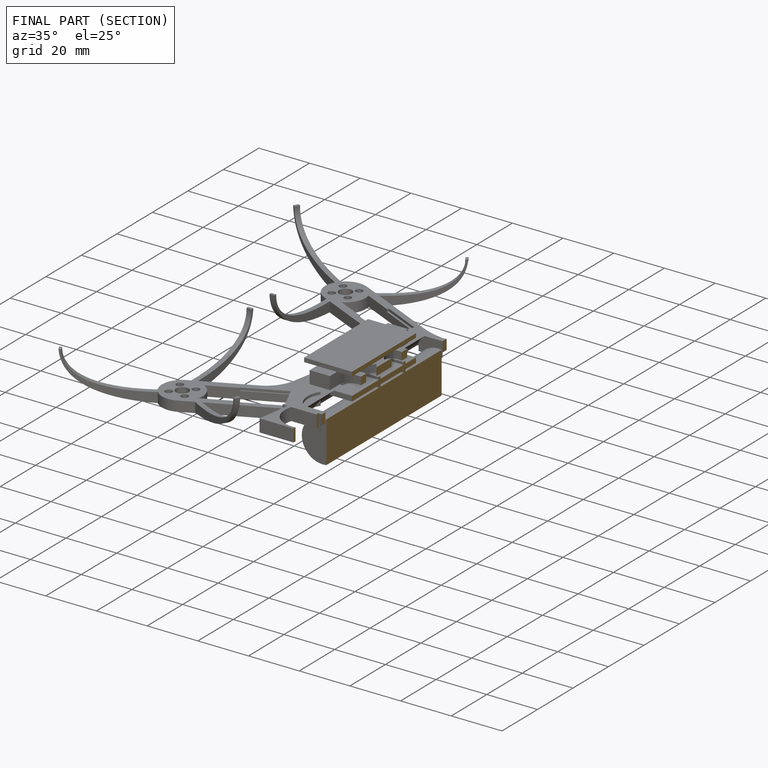
[diagram: finished part — half-section view (interior)]
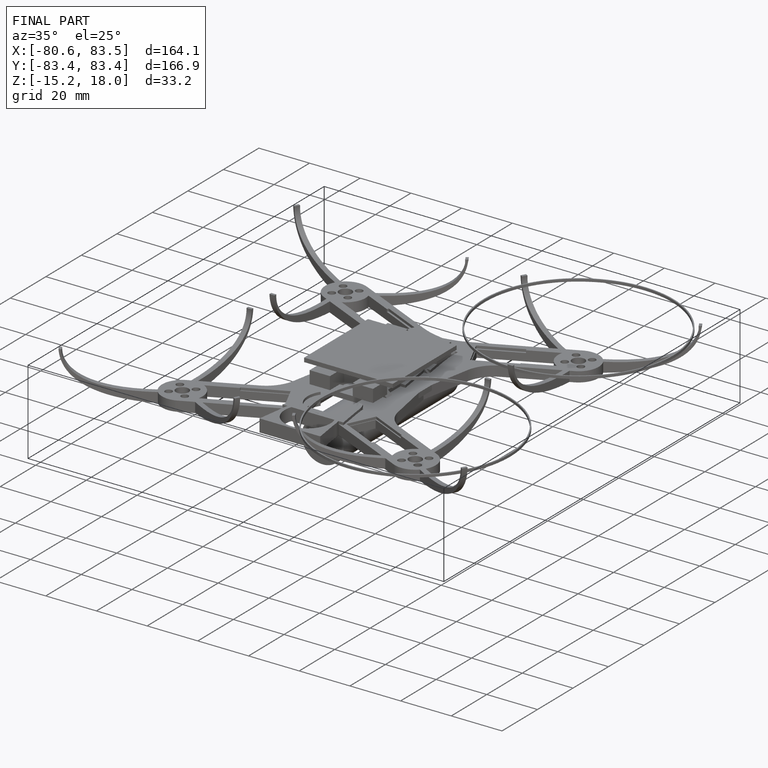
[diagram: finished part — iso view with bounding-box wireframe]
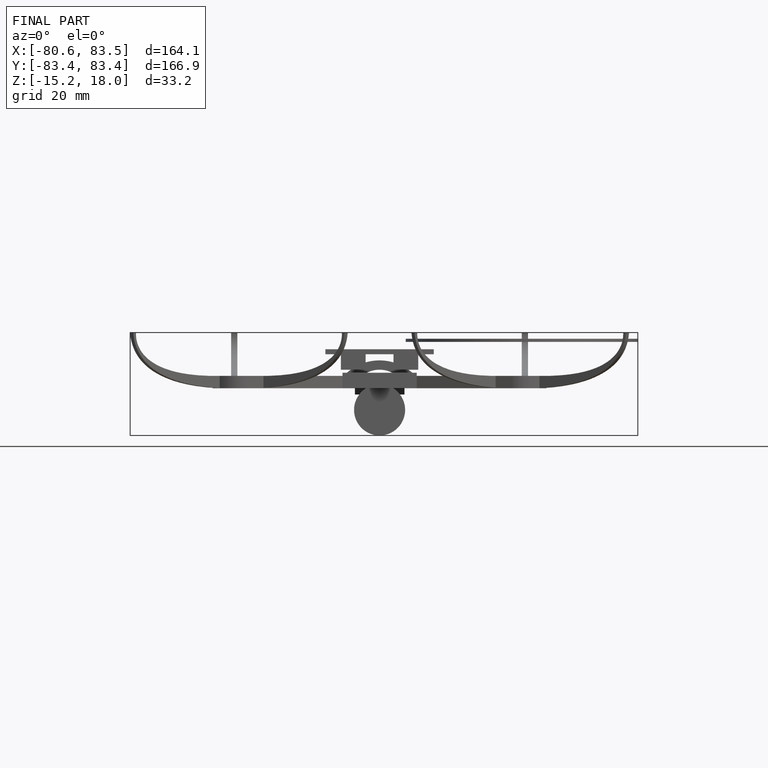
[diagram: finished part — front view with bounding-box wireframe]
